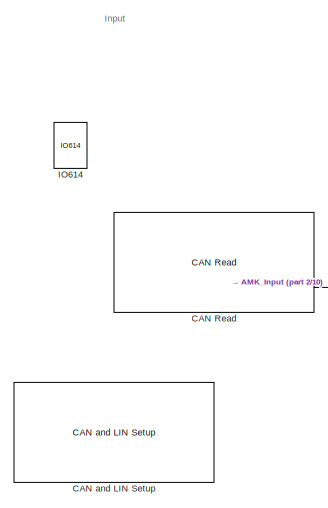
[diagram: root canvas - part 1/10, top left region]
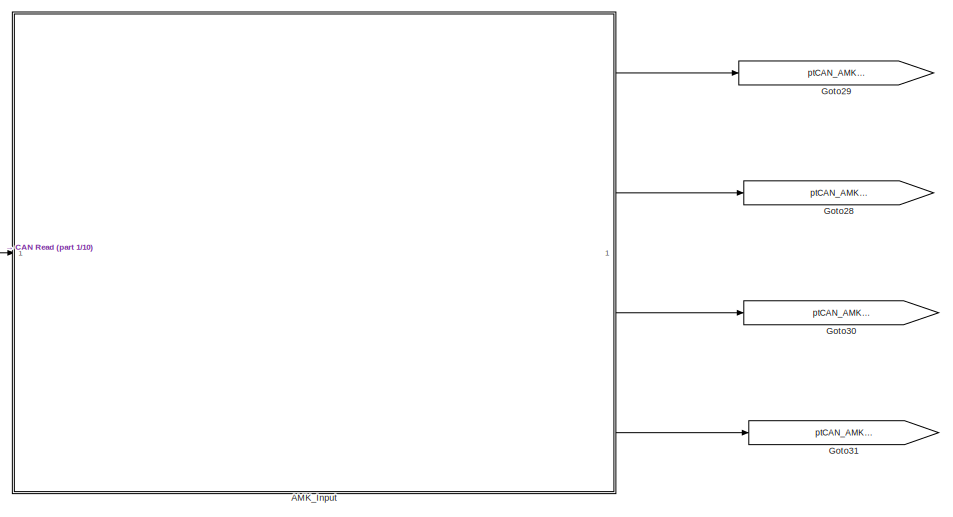
[diagram: root canvas - part 2/10, top left region]
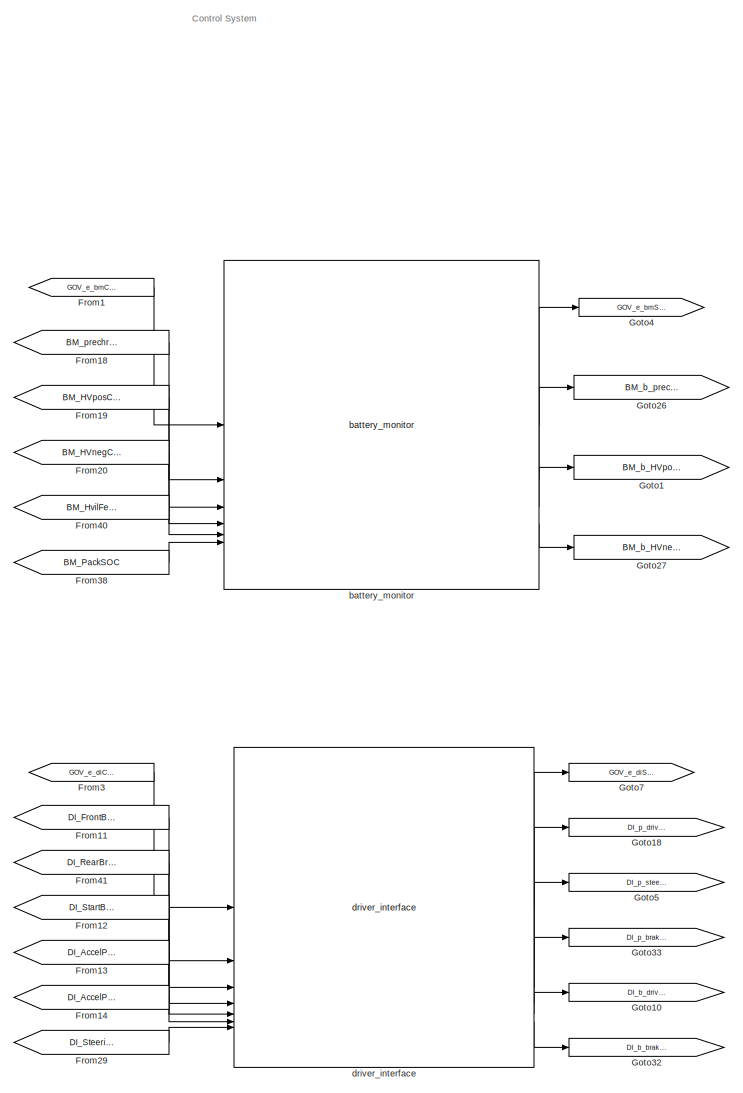
[diagram: root canvas - part 3/10, central region]
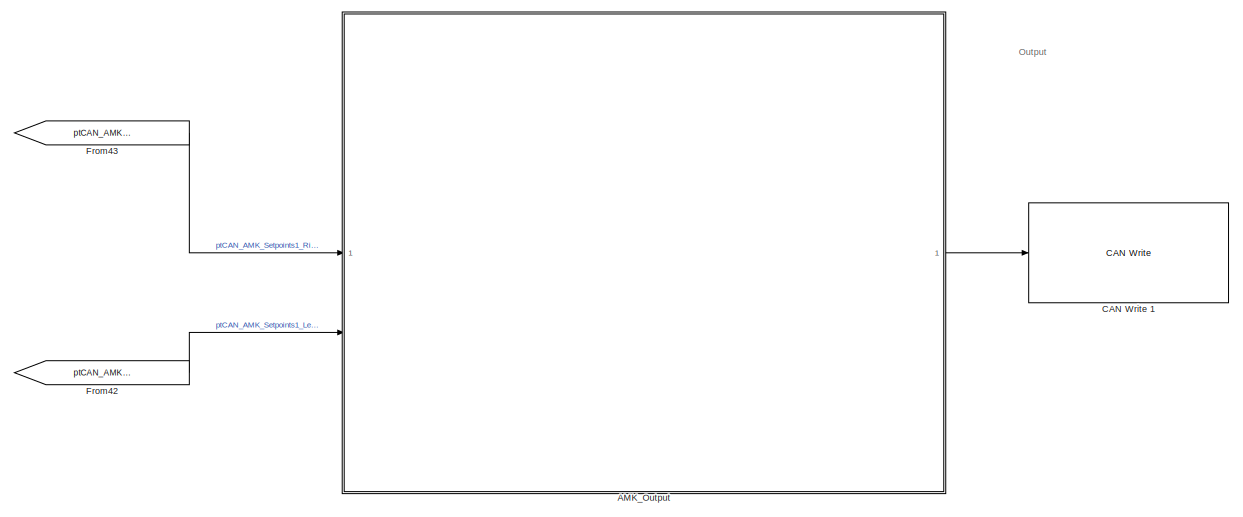
[diagram: root canvas - part 4/10, top right region]
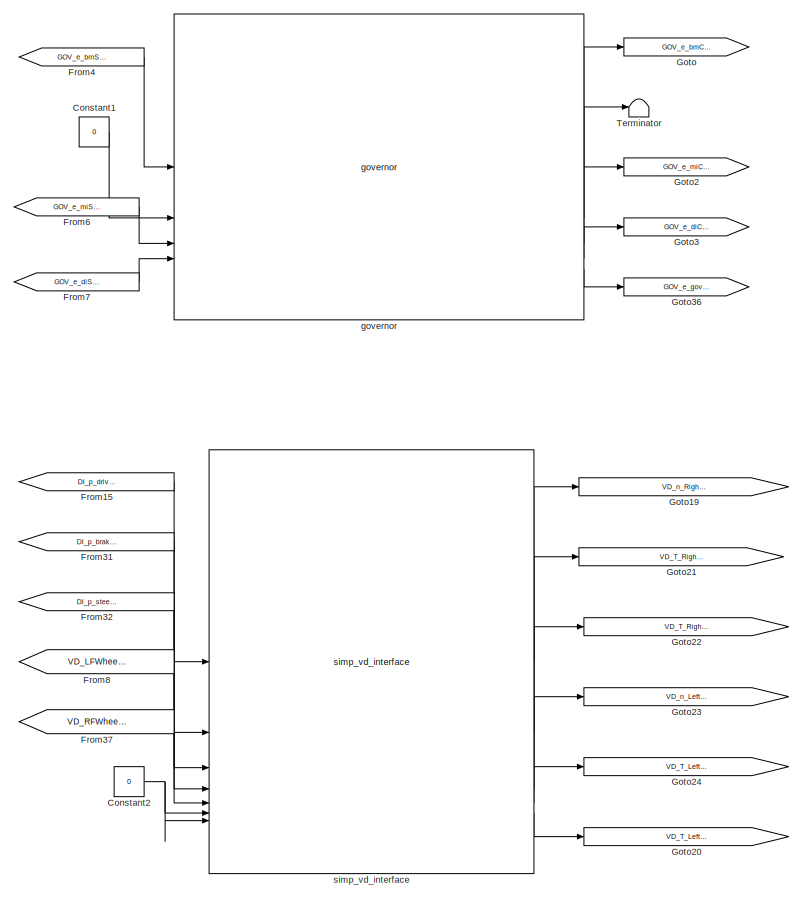
[diagram: root canvas - part 5/10, central region]
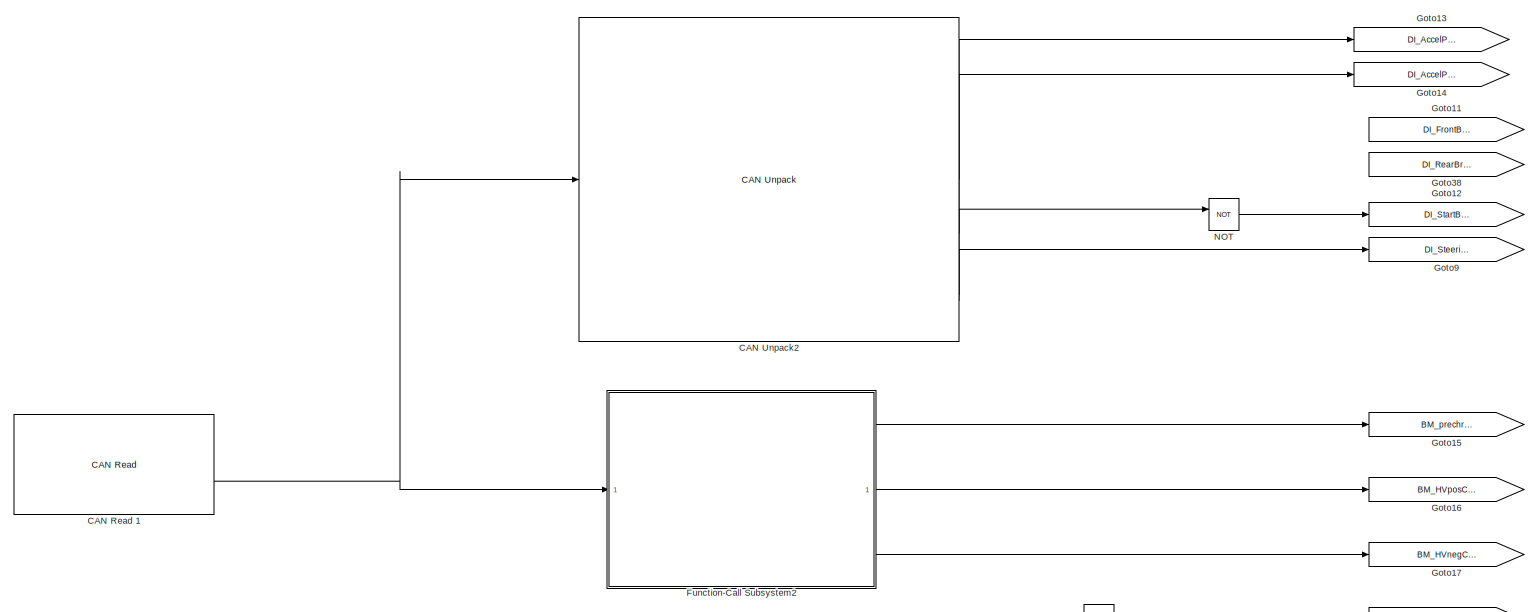
[diagram: root canvas - part 6/10, middle left region]
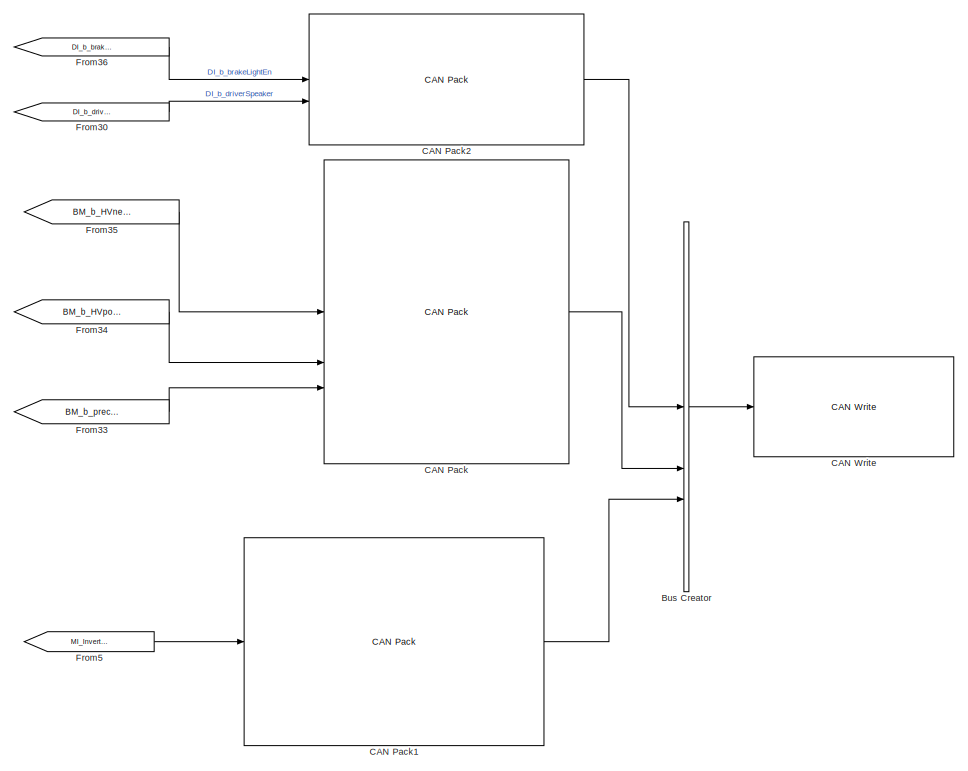
[diagram: root canvas - part 7/10, bottom right region]
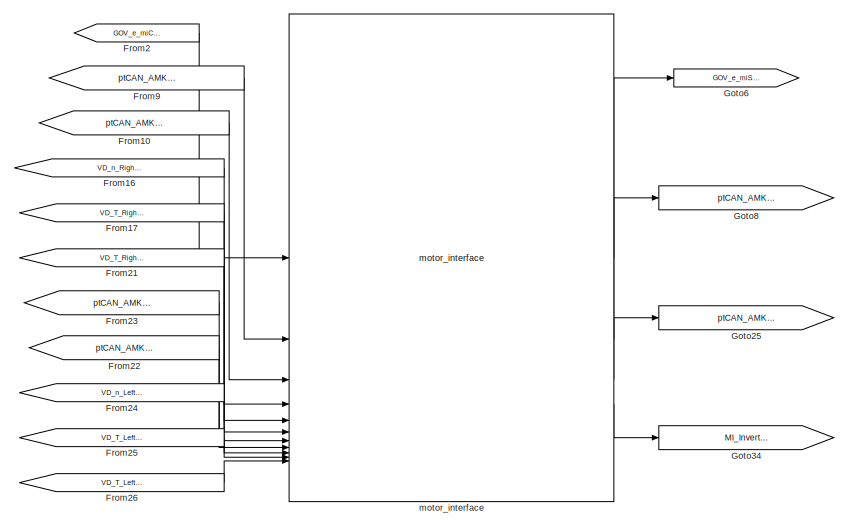
[diagram: root canvas - part 8/10, central region]
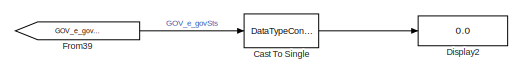
[diagram: root canvas - part 9/10, bottom right region]
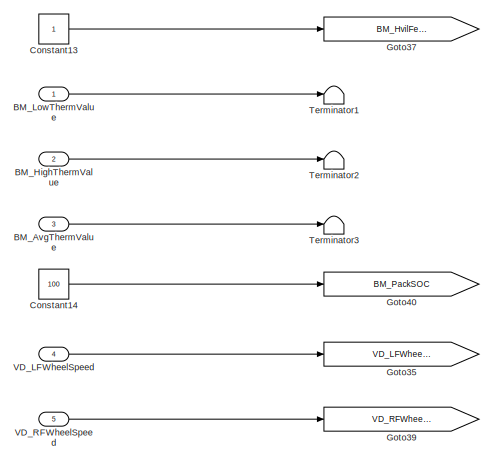
[diagram: root canvas - part 10/10, bottom left region]
MODEL slx_cbe800bc7175
KIND model
CONFIG AbsTol = auto
CONFIG EnableMultiTasking = off
CONFIG FixedStep = 0.001
CONFIG MaxStep = auto
CONFIG MinStep = auto
CONFIG RelTol = 1e-3
CONFIG SampleTimeConstraint = Unconstrained
CONFIG SolverName = FixedStepAuto
CONFIG StartTime = 0.0
CONFIG StopTime = inf
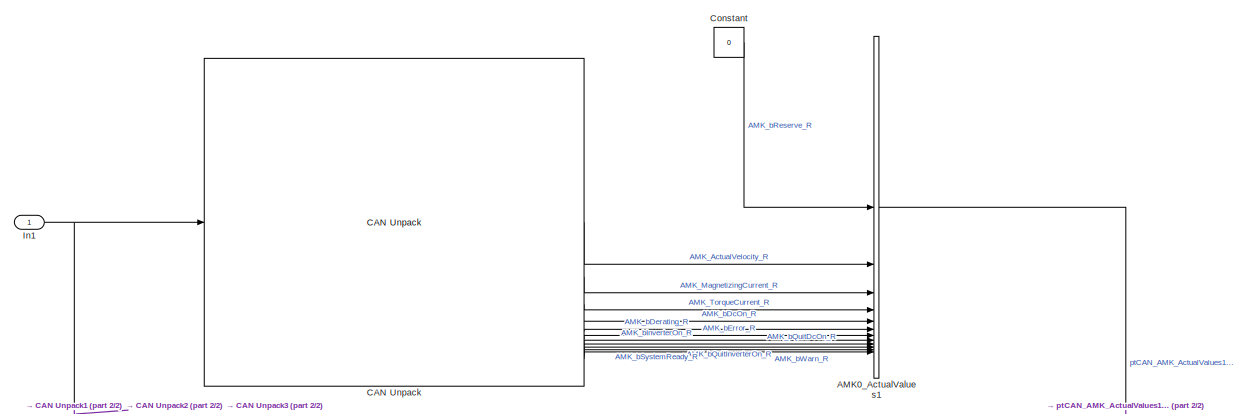
[diagram: AMK_Input - part 1/2, full width, top band]
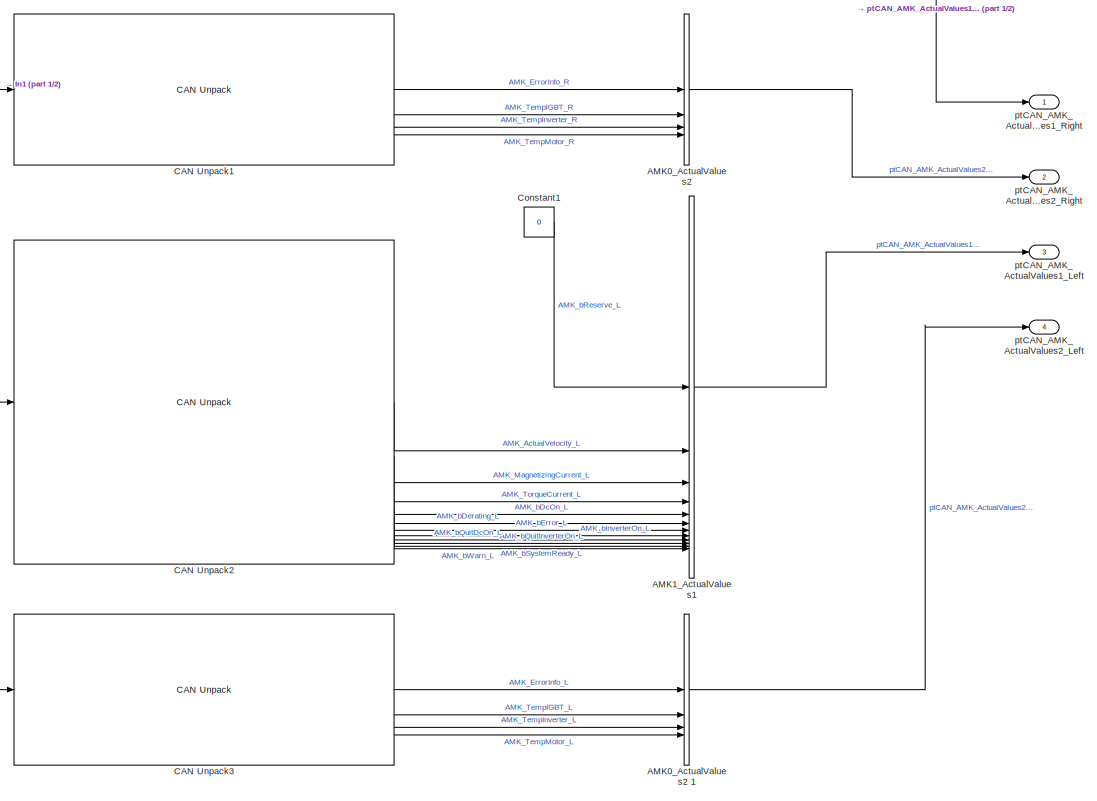
[diagram: AMK_Input - part 2/2, full width, bottom band]
BLOCK [SubSystem] AMK_Input
  TreatAsAtomicUnit = on
BLOCK [BusCreator] AMK_Input/AMK0_ActualValues1 
  DisplayOption = bar
  InheritFromInputs = on
  Inputs = 12
BLOCK [BusCreator] AMK_Input/AMK0_ActualValues2 
  DisplayOption = bar
  InheritFromInputs = on
  Inputs = 4
BLOCK [BusCreator] AMK_Input/AMK0_ActualValues2 1
  DisplayOption = bar
  InheritFromInputs = on
  Inputs = 4
BLOCK [BusCreator] AMK_Input/AMK1_ActualValues1
  DisplayOption = bar
  InheritFromInputs = on
  Inputs = 12
BLOCK [Reference] AMK_Input/CAN Unpack  REF=canmsglib/CAN Unpack
  LibrarySourceBlock = canlib/CAN Unpack
  SourceBlock = canmsglib/CAN Unpack
  SourceType = CAN Unpack
BLOCK [Reference] AMK_Input/CAN Unpack1  REF=canmsglib/CAN Unpack
  LibrarySourceBlock = canlib/CAN Unpack
  SourceBlock = canmsglib/CAN Unpack
  SourceType = CAN Unpack
BLOCK [Reference] AMK_Input/CAN Unpack2  REF=canmsglib/CAN Unpack
  LibrarySourceBlock = canlib/CAN Unpack
  SourceBlock = canmsglib/CAN Unpack
  SourceType = CAN Unpack
BLOCK [Reference] AMK_Input/CAN Unpack3  REF=canmsglib/CAN Unpack
  LibrarySourceBlock = canlib/CAN Unpack
  SourceBlock = canmsglib/CAN Unpack
  SourceType = CAN Unpack
BLOCK [Constant] AMK_Input/Constant
  Value = 0
BLOCK [Constant] AMK_Input/Constant1
  Value = 0
BLOCK [Inport] AMK_Input/In1
BLOCK [Outport] AMK_Input/ptCAN_AMK_ActualValues1_Left
  Port = 3
BLOCK [Outport] AMK_Input/ptCAN_AMK_ActualValues1_Right
BLOCK [Outport] AMK_Input/ptCAN_AMK_ActualValues2_Left
  Port = 4
BLOCK [Outport] AMK_Input/ptCAN_AMK_ActualValues2_Right
  Port = 2
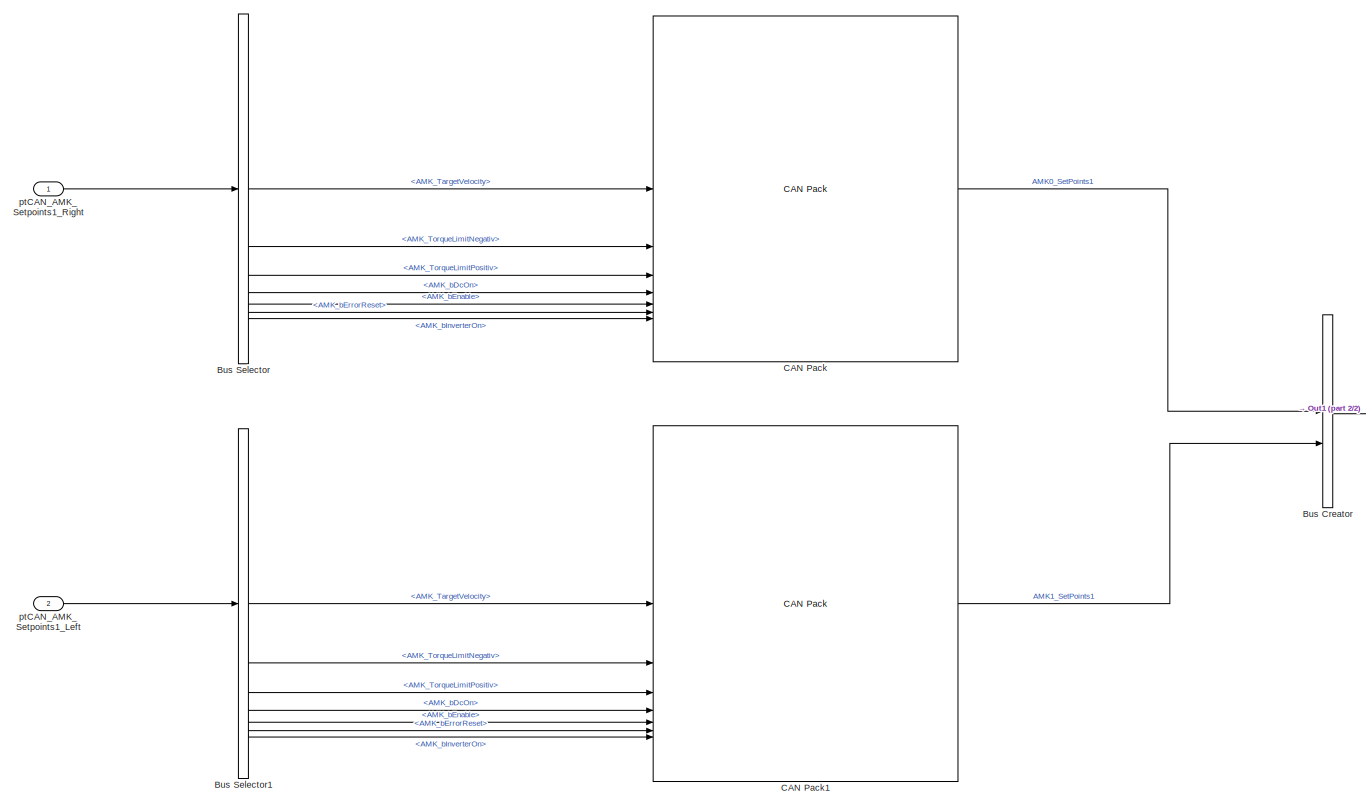
[diagram: AMK_Output - part 1/2, most of the canvas]
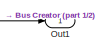
[diagram: AMK_Output - part 2/2, middle right region]
BLOCK [SubSystem] AMK_Output
BLOCK [BusCreator] AMK_Output/Bus Creator
  DisplayOption = bar
  InheritFromInputs = on
  Inputs = 2
BLOCK [BusSelector] AMK_Output/Bus Selector
  OutputSignals = AMK_TargetVelocity,AMK_TorqueLimitNegativ,AMK_TorqueLimitPositiv,AMK_bDcOn,AMK_bEnable,AMK_bErrorReset,AMK_bInverterOn
BLOCK [BusSelector] AMK_Output/Bus Selector1
  OutputSignals = AMK_TargetVelocity,AMK_TorqueLimitNegativ,AMK_TorqueLimitPositiv,AMK_bDcOn,AMK_bEnable,AMK_bErrorReset,AMK_bInverterOn
BLOCK [Reference] AMK_Output/CAN Pack  REF=canmsglib/CAN Pack
  LibrarySourceBlock = canlib/CAN Pack
  SourceBlock = canmsglib/CAN Pack
  SourceType = CAN Pack
BLOCK [Reference] AMK_Output/CAN Pack1  REF=canmsglib/CAN Pack
  LibrarySourceBlock = canlib/CAN Pack
  SourceBlock = canmsglib/CAN Pack
  SourceType = CAN Pack
BLOCK [Outport] AMK_Output/Out1
BLOCK [Inport] AMK_Output/ptCAN_AMK_Setpoints1_Left
  Port = 2
BLOCK [Inport] AMK_Output/ptCAN_AMK_Setpoints1_Right
BLOCK [Inport] BM_AvgThermValue
  OutDataTypeStr = int8
  Port = 3
  Unit = °C
BLOCK [Inport] BM_HighThermValue
  OutDataTypeStr = int8
  Port = 2
  Unit = °C
BLOCK [Inport] BM_LowThermValue
  OutDataTypeStr = int8
  Unit = °C
BLOCK [BusCreator] Bus Creator
  DisplayOption = bar
  InheritFromInputs = on
  Inputs = 3
BLOCK [Reference] CAN Pack  REF=canmsglib/CAN Pack
  LibrarySourceBlock = canlib/CAN Pack
  SourceBlock = canmsglib/CAN Pack
  SourceType = CAN Pack
BLOCK [Reference] CAN Pack1  REF=canmsglib/CAN Pack
  LibrarySourceBlock = canlib/CAN Pack
  SourceBlock = canmsglib/CAN Pack
  SourceType = CAN Pack
BLOCK [Reference] CAN Pack2  REF=canmsglib/CAN Pack
  LibrarySourceBlock = canlib/CAN Pack
  SourceBlock = canmsglib/CAN Pack
  SourceType = CAN Pack
BLOCK [Reference] CAN Read   REF=speedgoatlib_IO614/CAN Read 
  SourceBlock = speedgoatlib_IO614/CAN Read
  SourceProductName = Simulink Real-Time: Speedgoat I/O Blockset
  SourceType = read_IO61X_can
BLOCK [Reference] CAN Read 1  REF=speedgoatlib_IO614/CAN Read 
  SourceBlock = speedgoatlib_IO614/CAN Read
  SourceProductName = Simulink Real-Time: Speedgoat I/O Blockset
  SourceType = read_IO61X_can
BLOCK [Reference] CAN Unpack2  REF=canmsglib/CAN Unpack
  LibrarySourceBlock = canlib/CAN Unpack
  SourceBlock = canmsglib/CAN Unpack
  SourceType = CAN Unpack
BLOCK [Reference] CAN Write   REF=speedgoatlib_IO614/CAN Write 
  SourceBlock = speedgoatlib_IO614/CAN Write
  SourceProductName = Simulink Real-Time: Speedgoat I/O Blockset
  SourceType = write_IO61X_can
BLOCK [Reference] CAN Write 1  REF=speedgoatlib_IO614/CAN Write 
  SourceBlock = speedgoatlib_IO614/CAN Write
  SourceProductName = Simulink Real-Time: Speedgoat I/O Blockset
  SourceType = write_IO61X_can
BLOCK [Reference] CAN and LIN Setup   REF=speedgoatlib_IO614/CAN and LIN Setup 
  LibrarySourceBlock = speedgoatlib_CANLIN_OfA2/CAN and LIN Setup
  SourceBlock = speedgoatlib_IO614/CAN and LIN Setup
  SourceType = setup_IO61X_canlin
BLOCK [DataTypeConversion] Cast To Single
  OutDataTypeStr = uint8
  RndMeth = Floor
  SaturateOnIntegerOverflow = off
BLOCK [Constant] Constant1
  Value = 0
BLOCK [Constant] Constant13
  OutMax = 1
  OutMin = 0
BLOCK [Constant] Constant14
  OutMax = 100
  OutMin = 0
  Value = 100
BLOCK [Constant] Constant2
  Value = 0
BLOCK [Display] Display2
  Decimation = 1
BLOCK [From] From1
  GotoTag = GOV_e_bmCmd
BLOCK [From] From10
  GotoTag = ptCAN_AMK_ActualValues2_Right
BLOCK [From] From11
  GotoTag = DI_FrontBrakePressure
BLOCK [From] From12
  GotoTag = DI_StartButton
BLOCK [From] From13
  GotoTag = DI_AccelPedalPosition1
BLOCK [From] From14
  GotoTag = DI_AccelPedalPosition2
BLOCK [From] From15
  GotoTag = DI_p_driverTorqueRequest
BLOCK [From] From16
  GotoTag = VD_n_RightMotorSpeedRequest
BLOCK [From] From17
  GotoTag = VD_T_RightMotorTorqueLimitPositive
BLOCK [From] From18
  GotoTag = BM_prechrgContactorSts
BLOCK [From] From19
  GotoTag = BM_HVposContactorSts
BLOCK [From] From2
  GotoTag = GOV_e_miCmd
BLOCK [From] From20
  GotoTag = BM_HVnegContactorSts
BLOCK [From] From21
  GotoTag = VD_T_RightMotorTorqueLimitNegative
BLOCK [From] From22
  GotoTag = ptCAN_AMK_ActualValues2_Left
BLOCK [From] From23
  GotoTag = ptCAN_AMK_ActualValues1_Left
BLOCK [From] From24
  GotoTag = VD_n_LeftMotorSpeedRequest
BLOCK [From] From25
  GotoTag = VD_T_LeftMotorTorqueLimitPositive
BLOCK [From] From26
  GotoTag = VD_T_LeftMotorTorqueLimitNegative
BLOCK [From] From29
  GotoTag = DI_SteeringAngle
BLOCK [From] From3
  GotoTag = GOV_e_diCmd
BLOCK [From] From30
  GotoTag = DI_b_driverSpeaker
BLOCK [From] From31
  GotoTag = DI_p_brakePedalPosition
BLOCK [From] From32
  GotoTag = DI_p_steeringAngle
BLOCK [From] From33
  GotoTag = BM_b_prechargeContactorCMD
BLOCK [From] From34
  GotoTag = BM_b_HVposContactorCMD
BLOCK [From] From35
  GotoTag = BM_b_HVnegContactorCMD
BLOCK [From] From36
  GotoTag = DI_b_brakeLightEn
BLOCK [From] From37
  GotoTag = VD_RFWheelSpeed
BLOCK [From] From38
  GotoTag = BM_PackSOC
BLOCK [From] From39
  GotoTag = GOV_e_govSts
BLOCK [From] From4
  GotoTag = GOV_e_bmSts
BLOCK [From] From40
  GotoTag = BM_HvilFeedback
BLOCK [From] From41
  GotoTag = DI_RearBrakePressure
BLOCK [From] From42
  GotoTag = ptCAN_AMK_Setpoints1_Left
BLOCK [From] From43
  GotoTag = ptCAN_AMK_Setpoints1_Right
BLOCK [From] From5
  GotoTag = MI_InverterEn
BLOCK [From] From6
  GotoTag = GOV_e_miSts
BLOCK [From] From7
  GotoTag = GOV_e_diSts
BLOCK [From] From8
  GotoTag = VD_LFWheelSpeed
BLOCK [From] From9
  GotoTag = ptCAN_AMK_ActualValues1_Right
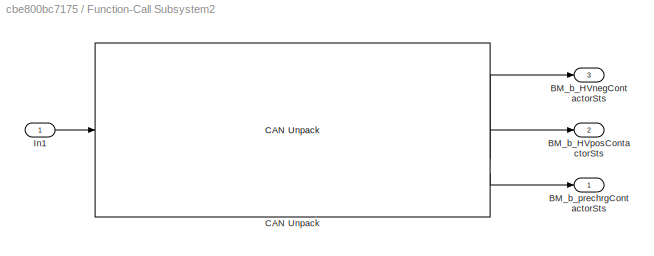
BLOCK [SubSystem] Function-Call Subsystem2
  TreatAsAtomicUnit = on
BLOCK [Outport] Function-Call Subsystem2/BM_b_HVnegContactorSts
  Port = 3
BLOCK [Outport] Function-Call Subsystem2/BM_b_HVposContactorSts
  Port = 2
BLOCK [Outport] Function-Call Subsystem2/BM_b_prechrgContactorSts
BLOCK [Reference] Function-Call Subsystem2/CAN Unpack  REF=canmsglib/CAN Unpack
  LibrarySourceBlock = canlib/CAN Unpack
  SourceBlock = canmsglib/CAN Unpack
  SourceType = CAN Unpack
BLOCK [Inport] Function-Call Subsystem2/In1
BLOCK [Goto] Goto
  GotoTag = GOV_e_bmCmd
BLOCK [Goto] Goto1
  GotoTag = BM_b_HVposContactorCMD
BLOCK [Goto] Goto10
  GotoTag = DI_b_driverSpeaker
BLOCK [Goto] Goto11
  GotoTag = DI_FrontBrakePressure
BLOCK [Goto] Goto12
  GotoTag = DI_StartButton
BLOCK [Goto] Goto13
  GotoTag = DI_AccelPedalPosition1
BLOCK [Goto] Goto14
  GotoTag = DI_AccelPedalPosition2
BLOCK [Goto] Goto15
  GotoTag = BM_prechrgContactorSts
BLOCK [Goto] Goto16
  GotoTag = BM_HVposContactorSts
BLOCK [Goto] Goto17
  GotoTag = BM_HVnegContactorSts
BLOCK [Goto] Goto18
  GotoTag = DI_p_driverTorqueRequest
BLOCK [Goto] Goto19
  GotoTag = VD_n_RightMotorSpeedRequest
BLOCK [Goto] Goto2
  GotoTag = GOV_e_miCmd
BLOCK [Goto] Goto20
  GotoTag = VD_T_LeftMotorTorqueLimitNegative
BLOCK [Goto] Goto21
  GotoTag = VD_T_RightMotorTorqueLimitPositive
BLOCK [Goto] Goto22
  GotoTag = VD_T_RightMotorTorqueLimitNegative
BLOCK [Goto] Goto23
  GotoTag = VD_n_LeftMotorSpeedRequest
BLOCK [Goto] Goto24
  GotoTag = VD_T_LeftMotorTorqueLimitPositive
BLOCK [Goto] Goto25
  GotoTag = ptCAN_AMK_Setpoints1_Left
BLOCK [Goto] Goto26
  GotoTag = BM_b_prechargeContactorCMD
BLOCK [Goto] Goto27
  GotoTag = BM_b_HVnegContactorCMD
  NameLocation = left
BLOCK [Goto] Goto28
  GotoTag = ptCAN_AMK_ActualValues2_Right
BLOCK [Goto] Goto29
  GotoTag = ptCAN_AMK_ActualValues1_Right
BLOCK [Goto] Goto3
  GotoTag = GOV_e_diCmd
BLOCK [Goto] Goto30
  GotoTag = ptCAN_AMK_ActualValues1_Left
BLOCK [Goto] Goto31
  GotoTag = ptCAN_AMK_ActualValues2_Left
BLOCK [Goto] Goto32
  GotoTag = DI_b_brakeLightEn
BLOCK [Goto] Goto33
  GotoTag = DI_p_brakePedalPosition
BLOCK [Goto] Goto34
  GotoTag = MI_InverterEn
BLOCK [Goto] Goto35
  GotoTag = VD_LFWheelSpeed
BLOCK [Goto] Goto36
  GotoTag = GOV_e_govSts
BLOCK [Goto] Goto37
  GotoTag = BM_HvilFeedback
BLOCK [Goto] Goto38
  GotoTag = DI_RearBrakePressure
BLOCK [Goto] Goto39
  GotoTag = VD_RFWheelSpeed
BLOCK [Goto] Goto4
  GotoTag = GOV_e_bmSts
BLOCK [Goto] Goto40
  GotoTag = BM_PackSOC
BLOCK [Goto] Goto5
  GotoTag = DI_p_steeringAngle
BLOCK [Goto] Goto6
  GotoTag = GOV_e_miSts
BLOCK [Goto] Goto7
  GotoTag = GOV_e_diSts
BLOCK [Goto] Goto8
  GotoTag = ptCAN_AMK_Setpoints1_Right
BLOCK [Goto] Goto9
  GotoTag = DI_SteeringAngle
BLOCK [Reference] IO614  REF=speedgoatlib_CAN/IO614
  SourceBlock = speedgoatlib_CAN/IO614
  SourceProductName = Simulink Real-Time: Speedgoat I/O Blockset
BLOCK [Logic] NOT
  AllPortsSameDT = off
  IconShape = distinctive
  Operator = NOT
  OutDataTypeStr = boolean
BLOCK [Terminator] Terminator
BLOCK [Terminator] Terminator1
BLOCK [Terminator] Terminator2
BLOCK [Terminator] Terminator3
BLOCK [Inport] VD_LFWheelSpeed
  OutDataTypeStr = int16
  Port = 4
  Unit = rpm
BLOCK [Inport] VD_RFWheelSpeed
  OutDataTypeStr = int16
  Port = 5
  Unit = rpm
BLOCK [Reference] battery_monitor  REF=battery_monitor_lib/battery_monitor  (lib defined in slx_91b9e2d5ec61)
  SourceBlock = battery_monitor_lib/battery_monitor
  SourceType = SubSystem
BLOCK [Reference] driver_interface  REF=driver_interface_lib/driver_interface  (lib defined in slx_3cb616a1b385)
  SourceBlock = driver_interface_lib/driver_interface
  SourceType = SubSystem
BLOCK [Reference] governor  REF=governor_lib/governor  (lib defined in slx_791b6fe89bfd)
  SourceBlock = governor_lib/governor
  SourceType = SubSystem
BLOCK [Reference] motor_interface  REF=motor_interface_lib/motor_interface  (lib defined in slx_5f2d46c379c1, slx_6012f76cf487)
  SourceBlock = motor_interface_lib/motor_interface
  SourceType = SubSystem
BLOCK [Reference] simp_vd_interface  REF=simp_vd_lib/simp_vd_interface  (lib defined in slx_d7ae73b593e7)
  SourceBlock = simp_vd_lib/simp_vd_interface
  SourceType = SubSystem
ANNOTATION (root): Input
ANNOTATION (root): Output
ANNOTATION (root): Control System
LINE AMK_Input/AMK0_ActualValues1 :1 -> AMK_Input/ptCAN_AMK_ActualValues1_Right:1
LINE AMK_Input/AMK0_ActualValues2 1:1 -> AMK_Input/ptCAN_AMK_ActualValues2_Left:1
LINE AMK_Input/AMK0_ActualValues2 :1 -> AMK_Input/ptCAN_AMK_ActualValues2_Right:1
LINE AMK_Input/AMK1_ActualValues1:1 -> AMK_Input/ptCAN_AMK_ActualValues1_Left:1
LINE AMK_Input/CAN Unpack1:1 -> AMK_Input/AMK0_ActualValues2 :1
LINE AMK_Input/CAN Unpack1:2 -> AMK_Input/AMK0_ActualValues2 :2
LINE AMK_Input/CAN Unpack1:3 -> AMK_Input/AMK0_ActualValues2 :3
LINE AMK_Input/CAN Unpack1:4 -> AMK_Input/AMK0_ActualValues2 :4
LINE AMK_Input/CAN Unpack2:1 -> AMK_Input/AMK1_ActualValues1:2
LINE AMK_Input/CAN Unpack2:10 -> AMK_Input/AMK1_ActualValues1:11
LINE AMK_Input/CAN Unpack2:11 -> AMK_Input/AMK1_ActualValues1:12
LINE AMK_Input/CAN Unpack2:2 -> AMK_Input/AMK1_ActualValues1:3
LINE AMK_Input/CAN Unpack2:3 -> AMK_Input/AMK1_ActualValues1:4
LINE AMK_Input/CAN Unpack2:4 -> AMK_Input/AMK1_ActualValues1:5
LINE AMK_Input/CAN Unpack2:5 -> AMK_Input/AMK1_ActualValues1:6
LINE AMK_Input/CAN Unpack2:6 -> AMK_Input/AMK1_ActualValues1:7
LINE AMK_Input/CAN Unpack2:7 -> AMK_Input/AMK1_ActualValues1:8
LINE AMK_Input/CAN Unpack2:8 -> AMK_Input/AMK1_ActualValues1:9
LINE AMK_Input/CAN Unpack2:9 -> AMK_Input/AMK1_ActualValues1:10
LINE AMK_Input/CAN Unpack3:1 -> AMK_Input/AMK0_ActualValues2 1:1
LINE AMK_Input/CAN Unpack3:2 -> AMK_Input/AMK0_ActualValues2 1:2
LINE AMK_Input/CAN Unpack3:3 -> AMK_Input/AMK0_ActualValues2 1:3
LINE AMK_Input/CAN Unpack3:4 -> AMK_Input/AMK0_ActualValues2 1:4
LINE AMK_Input/CAN Unpack:1 -> AMK_Input/AMK0_ActualValues1 :2
LINE AMK_Input/CAN Unpack:10 -> AMK_Input/AMK0_ActualValues1 :11
LINE AMK_Input/CAN Unpack:11 -> AMK_Input/AMK0_ActualValues1 :12
LINE AMK_Input/CAN Unpack:2 -> AMK_Input/AMK0_ActualValues1 :3
LINE AMK_Input/CAN Unpack:3 -> AMK_Input/AMK0_ActualValues1 :4
LINE AMK_Input/CAN Unpack:4 -> AMK_Input/AMK0_ActualValues1 :5
LINE AMK_Input/CAN Unpack:5 -> AMK_Input/AMK0_ActualValues1 :6
LINE AMK_Input/CAN Unpack:6 -> AMK_Input/AMK0_ActualValues1 :7
LINE AMK_Input/CAN Unpack:7 -> AMK_Input/AMK0_ActualValues1 :8
LINE AMK_Input/CAN Unpack:8 -> AMK_Input/AMK0_ActualValues1 :9
LINE AMK_Input/CAN Unpack:9 -> AMK_Input/AMK0_ActualValues1 :10
LINE AMK_Input/Constant1:1 -> AMK_Input/AMK1_ActualValues1:1
LINE AMK_Input/Constant:1 -> AMK_Input/AMK0_ActualValues1 :1
NET AMK_Input/In1:1 -> AMK_Input/CAN Unpack1:1, AMK_Input/CAN Unpack2:1, AMK_Input/CAN Unpack3:1, AMK_Input/CAN Unpack:1
LINE AMK_Input:1 -> Goto29:1
LINE AMK_Input:2 -> Goto28:1
LINE AMK_Input:3 -> Goto30:1
LINE AMK_Input:4 -> Goto31:1
LINE AMK_Output/Bus Creator:1 -> AMK_Output/Out1:1
LINE AMK_Output/Bus Selector1:1 -> AMK_Output/CAN Pack1:1
LINE AMK_Output/Bus Selector1:2 -> AMK_Output/CAN Pack1:2
LINE AMK_Output/Bus Selector1:3 -> AMK_Output/CAN Pack1:3
LINE AMK_Output/Bus Selector1:4 -> AMK_Output/CAN Pack1:4
LINE AMK_Output/Bus Selector1:5 -> AMK_Output/CAN Pack1:5
LINE AMK_Output/Bus Selector1:6 -> AMK_Output/CAN Pack1:6
LINE AMK_Output/Bus Selector1:7 -> AMK_Output/CAN Pack1:7
LINE AMK_Output/Bus Selector:1 -> AMK_Output/CAN Pack:1
LINE AMK_Output/Bus Selector:2 -> AMK_Output/CAN Pack:2
LINE AMK_Output/Bus Selector:3 -> AMK_Output/CAN Pack:3
LINE AMK_Output/Bus Selector:4 -> AMK_Output/CAN Pack:4
LINE AMK_Output/Bus Selector:5 -> AMK_Output/CAN Pack:5
LINE AMK_Output/Bus Selector:6 -> AMK_Output/CAN Pack:6
LINE AMK_Output/Bus Selector:7 -> AMK_Output/CAN Pack:7
LINE AMK_Output/CAN Pack1:1 -> AMK_Output/Bus Creator:2
LINE AMK_Output/CAN Pack:1 -> AMK_Output/Bus Creator:1
LINE AMK_Output/ptCAN_AMK_Setpoints1_Left:1 -> AMK_Output/Bus Selector1:1
LINE AMK_Output/ptCAN_AMK_Setpoints1_Right:1 -> AMK_Output/Bus Selector:1
LINE AMK_Output:1 -> CAN Write 1:1
LINE BM_AvgThermValue:1 -> Terminator3:1
LINE BM_HighThermValue:1 -> Terminator2:1
LINE BM_LowThermValue:1 -> Terminator1:1
LINE Bus Creator:1 -> CAN Write :1
LINE CAN Pack1:1 -> Bus Creator:3
LINE CAN Pack2:1 -> Bus Creator:1
LINE CAN Pack:1 -> Bus Creator:2
NET CAN Read 1:2 -> CAN Unpack2:1, Function-Call Subsystem2:1
LINE CAN Read :2 -> AMK_Input:1
LINE CAN Unpack2:1 -> Goto13:1
LINE CAN Unpack2:2 -> Goto14:1
LINE CAN Unpack2:6 -> NOT:1
LINE CAN Unpack2:7 -> Goto9:1
LINE Cast To Single:1 -> Display2:1
LINE Constant13:1 -> Goto37:1
LINE Constant14:1 -> Goto40:1
LINE Constant1:1 -> governor:2
NET Constant2:1 -> simp_vd_interface:6, simp_vd_interface:7
LINE From10:1 -> motor_interface:3
LINE From11:1 -> driver_interface:2
LINE From12:1 -> driver_interface:4
LINE From13:1 -> driver_interface:5
LINE From14:1 -> driver_interface:6
LINE From15:1 -> simp_vd_interface:1
LINE From16:1 -> motor_interface:4
LINE From17:1 -> motor_interface:5
LINE From18:1 -> battery_monitor:2
LINE From19:1 -> battery_monitor:3
LINE From1:1 -> battery_monitor:1
LINE From20:1 -> battery_monitor:4
LINE From21:1 -> motor_interface:6
LINE From22:1 -> motor_interface:8
LINE From23:1 -> motor_interface:7
LINE From24:1 -> motor_interface:9
LINE From25:1 -> motor_interface:10
LINE From26:1 -> motor_interface:11
LINE From29:1 -> driver_interface:7
LINE From2:1 -> motor_interface:1
LINE From30:1 -> CAN Pack2:2
LINE From31:1 -> simp_vd_interface:2
LINE From32:1 -> simp_vd_interface:3
LINE From33:1 -> CAN Pack:3
LINE From34:1 -> CAN Pack:2
LINE From35:1 -> CAN Pack:1
LINE From36:1 -> CAN Pack2:1
LINE From37:1 -> simp_vd_interface:5
LINE From38:1 -> battery_monitor:6
LINE From39:1 -> Cast To Single:1
LINE From3:1 -> driver_interface:1
LINE From40:1 -> battery_monitor:5
LINE From41:1 -> driver_interface:3
LINE From42:1 -> AMK_Output:2
LINE From43:1 -> AMK_Output:1
LINE From4:1 -> governor:1
LINE From5:1 -> CAN Pack1:1
LINE From6:1 -> governor:3
LINE From7:1 -> governor:4
LINE From8:1 -> simp_vd_interface:4
LINE From9:1 -> motor_interface:2
LINE Function-Call Subsystem2/CAN Unpack:1 -> Function-Call Subsystem2/BM_b_HVnegContactorSts:1
LINE Function-Call Subsystem2/CAN Unpack:2 -> Function-Call Subsystem2/BM_b_HVposContactorSts:1
LINE Function-Call Subsystem2/CAN Unpack:3 -> Function-Call Subsystem2/BM_b_prechrgContactorSts:1
LINE Function-Call Subsystem2/In1:1 -> Function-Call Subsystem2/CAN Unpack:1
LINE Function-Call Subsystem2:1 -> Goto15:1
LINE Function-Call Subsystem2:2 -> Goto16:1
LINE Function-Call Subsystem2:3 -> Goto17:1
LINE NOT:1 -> Goto12:1
LINE VD_LFWheelSpeed:1 -> Goto35:1
LINE VD_RFWheelSpeed:1 -> Goto39:1
LINE battery_monitor:1 -> Goto4:1
LINE battery_monitor:2 -> Goto26:1
LINE battery_monitor:3 -> Goto1:1
LINE battery_monitor:4 -> Goto27:1
LINE driver_interface:1 -> Goto7:1
LINE driver_interface:2 -> Goto18:1
LINE driver_interface:3 -> Goto5:1
LINE driver_interface:4 -> Goto33:1
LINE driver_interface:5 -> Goto10:1
LINE driver_interface:6 -> Goto32:1
LINE governor:1 -> Goto:1
LINE governor:2 -> Terminator:1
LINE governor:3 -> Goto2:1
LINE governor:4 -> Goto3:1
LINE governor:5 -> Goto36:1
LINE motor_interface:1 -> Goto6:1
LINE motor_interface:2 -> Goto8:1
LINE motor_interface:3 -> Goto25:1
LINE motor_interface:4 -> Goto34:1
LINE simp_vd_interface:1 -> Goto19:1
LINE simp_vd_interface:2 -> Goto21:1
LINE simp_vd_interface:3 -> Goto22:1
LINE simp_vd_interface:4 -> Goto23:1
LINE simp_vd_interface:5 -> Goto24:1
LINE simp_vd_interface:6 -> Goto20:1
note: NET lines group one-source signal fan-out (src -> all destinations, sorted); 1:1 wires keep LINE
